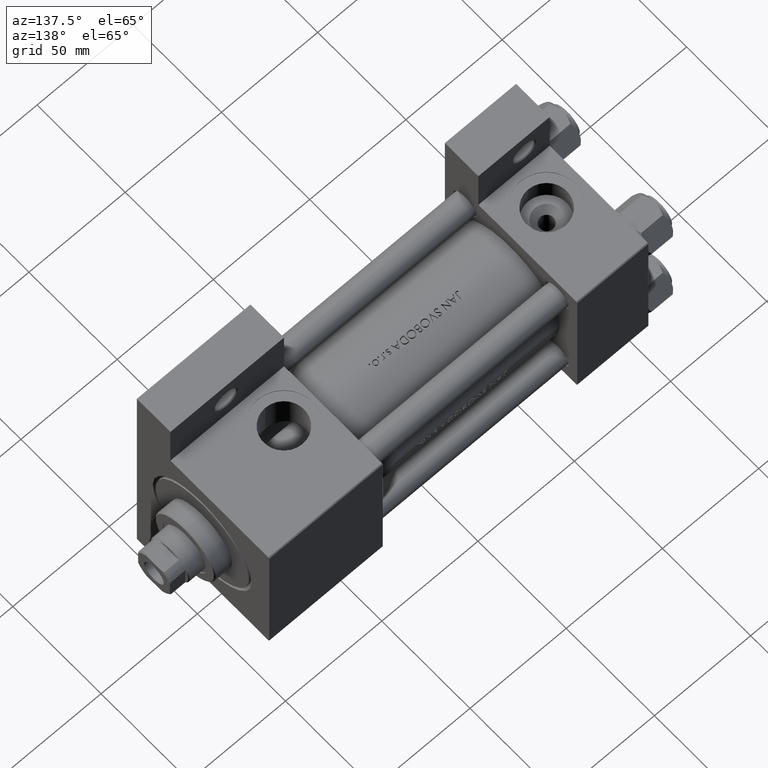
[diagram: clean part render]
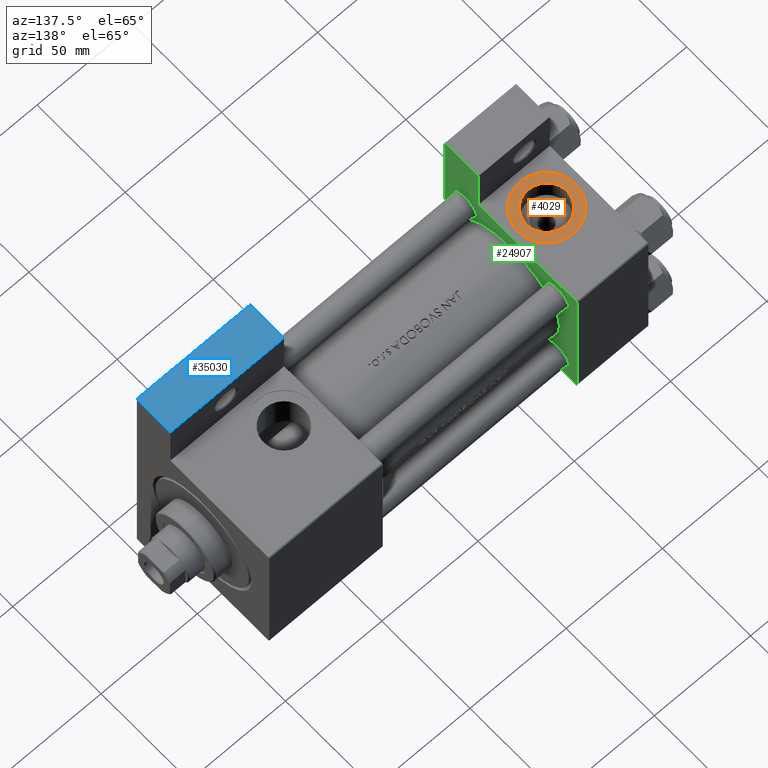
[diagram: same view with three faces highlighted in distinct colors, each labeled with its STEP entity id]
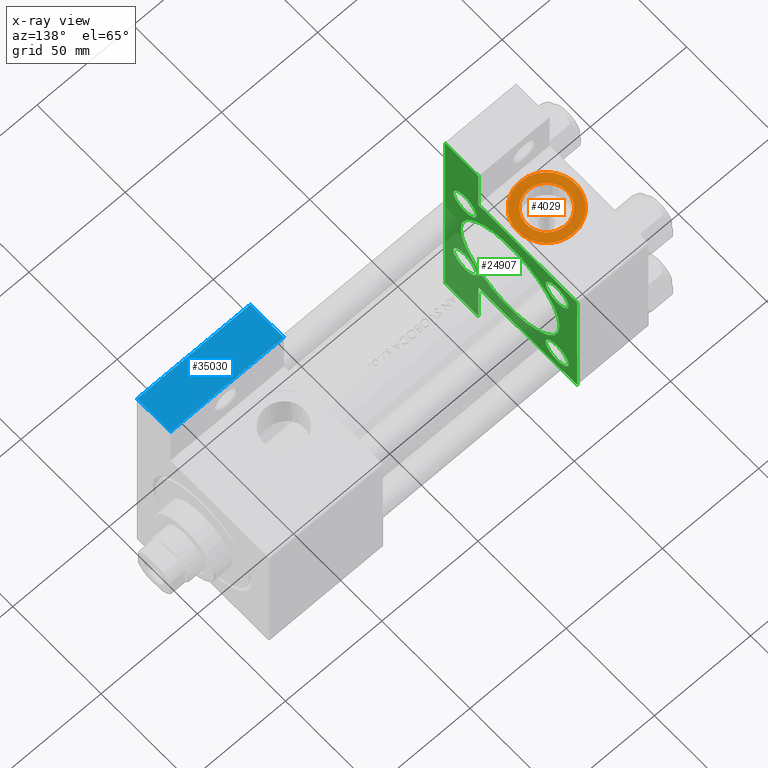
[diagram: x-ray of the same camera — body ghosted, the three highlighted faces saturated]
A machine part, auxiliary view with three faces highlighted in distinct colors.
The next image is the same camera in x-ray (body ghosted, the three faces saturated) — at least one of them is partly hidden behind the body in this view.
Their STEP definitions:

[orange] entity #4029 — the highlighted planar face has unit normal (0, -0, 1).
#244 = AXIS2_PLACEMENT_3D ( 'NONE', #19607, #8655, #34314 ) ;
#1715 = DIRECTION ( 'NONE',  ( 0.000000000000000000, 0.000000000000000000, -1.000000000000000000 ) ) ;
#3784 = EDGE_LOOP ( 'NONE', ( #42295, #26607 ) ) ;
#4029 = ADVANCED_FACE ( 'NONE', ( #15388, #19117 ), #31077, .T. ) ;
#4050 = AXIS2_PLACEMENT_3D ( 'NONE', #43397, #46907, #9288 ) ;
#4276 = VERTEX_POINT ( 'NONE', #38889 ) ;
#8655 = DIRECTION ( 'NONE',  ( 0.000000000000000000, -1.000000000000000000, -8.673617379884036705E-17 ) ) ;
#9172 = CARTESIAN_POINT ( 'NONE',  ( 18.50000000000000000, -37.30000000000000426, -3.452099717193846907E-15 ) ) ;
#9288 = DIRECTION ( 'NONE',  ( 0.000000000000000000, 0.000000000000000000, -1.000000000000000000 ) ) ;
#10128 = CARTESIAN_POINT ( 'NONE',  ( 18.50000000000000000, -37.30000000000000426, -3.452099717193846907E-15 ) ) ;
#13651 = CARTESIAN_POINT ( 'NONE',  ( 18.50000000000000355, -37.30000000000000426, 14.99999999999999822 ) ) ;
#13683 = DIRECTION ( 'NONE',  ( 0.000000000000000000, 0.000000000000000000, -1.000000000000000000 ) ) ;
#13861 = DIRECTION ( 'NONE',  ( 0.000000000000000000, 0.000000000000000000, -1.000000000000000000 ) ) ;
#13982 = ORIENTED_EDGE ( 'NONE', *, *, #27000, .T. ) ;
#15388 = FACE_BOUND ( 'NONE', #3784, .T. ) ;
#16477 = VERTEX_POINT ( 'NONE', #25539 ) ;
#16549 = CIRCLE ( 'NONE', #20516, 15.00000000000000178 ) ;
#18308 = AXIS2_PLACEMENT_3D ( 'NONE', #32376, #29119, #13683 ) ;
#18713 = VERTEX_POINT ( 'NONE', #35418 ) ;
#19117 = FACE_OUTER_BOUND ( 'NONE', #41386, .T. ) ;
#19607 = CARTESIAN_POINT ( 'NONE',  ( 18.50000000000000000, -37.30000000000000426, -3.452099717193846907E-15 ) ) ;
#20516 = AXIS2_PLACEMENT_3D ( 'NONE', #10128, #47994, #13861 ) ;
#24779 = CIRCLE ( 'NONE', #43880, 10.48000000000000043 ) ;
#25539 = CARTESIAN_POINT ( 'NONE',  ( 18.50000000000000000, -37.30000000000000426, 10.47999999999999687 ) ) ;
#26607 = ORIENTED_EDGE ( 'NONE', *, *, #37280, .F. ) ;
#27000 = EDGE_CURVE ( 'NONE', #31171, #18713, #16549, .T. ) ;
#27068 = CIRCLE ( 'NONE', #18308, 15.00000000000000178 ) ;
#29119 = DIRECTION ( 'NONE',  ( 0.000000000000000000, -1.000000000000000000, -8.673617379884036705E-17 ) ) ;
#29534 = ORIENTED_EDGE ( 'NONE', *, *, #35317, .T. ) ;
#31077 = PLANE ( 'NONE',  #244 ) ;
#31171 = VERTEX_POINT ( 'NONE', #13651 ) ;
#31601 = DIRECTION ( 'NONE',  ( 0.000000000000000000, -1.000000000000000000, -8.673617379884036705E-17 ) ) ;
#32376 = CARTESIAN_POINT ( 'NONE',  ( 18.50000000000000000, -37.30000000000000426, -3.452099717193846907E-15 ) ) ;
#34314 = DIRECTION ( 'NONE',  ( 0.000000000000000000, 8.673617379884036705E-17, -1.000000000000000000 ) ) ;
#35317 = EDGE_CURVE ( 'NONE', #18713, #31171, #27068, .T. ) ;
#35418 = CARTESIAN_POINT ( 'NONE',  ( 18.50000000000000000, -37.30000000000000426, -15.00000000000000533 ) ) ;
#36626 = CIRCLE ( 'NONE', #4050, 10.48000000000000043 ) ;
#37280 = EDGE_CURVE ( 'NONE', #16477, #4276, #36626, .T. ) ;
#38704 = EDGE_CURVE ( 'NONE', #4276, #16477, #24779, .T. ) ;
#38889 = CARTESIAN_POINT ( 'NONE',  ( 18.50000000000000000, -37.30000000000000426, -10.48000000000000398 ) ) ;
#41386 = EDGE_LOOP ( 'NONE', ( #29534, #13982 ) ) ;
#42295 = ORIENTED_EDGE ( 'NONE', *, *, #38704, .F. ) ;
#43397 = CARTESIAN_POINT ( 'NONE',  ( 18.50000000000000000, -37.30000000000000426, -3.452099717193846907E-15 ) ) ;
#43880 = AXIS2_PLACEMENT_3D ( 'NONE', #9172, #31601, #1715 ) ;
#46907 = DIRECTION ( 'NONE',  ( 0.000000000000000000, -1.000000000000000000, -8.673617379884036705E-17 ) ) ;
#47994 = DIRECTION ( 'NONE',  ( 0.000000000000000000, -1.000000000000000000, -8.673617379884036705E-17 ) ) ;

[blue] entity #35030 — the highlighted planar face has unit normal (-0, 0, 1).
#138 = VERTEX_POINT ( 'NONE', #5892 ) ;
#642 = EDGE_CURVE ( 'NONE', #1627, #33193, #46081, .T. ) ;
#1627 = VERTEX_POINT ( 'NONE', #32614 ) ;
#2080 = ORIENTED_EDGE ( 'NONE', *, *, #37901, .F. ) ;
#3178 = LINE ( 'NONE', #40284, #21541 ) ;
#4894 = VECTOR ( 'NONE', #19170, 1000.000000000000000 ) ;
#5104 = ORIENTED_EDGE ( 'NONE', *, *, #642, .T. ) ;
#5892 = CARTESIAN_POINT ( 'NONE',  ( 197.0000000000000000, -63.50000000000002842, -18.50000000000000000 ) ) ;
#7498 = FACE_OUTER_BOUND ( 'NONE', #16558, .T. ) ;
#9514 = ORIENTED_EDGE ( 'NONE', *, *, #43311, .F. ) ;
#11380 = VECTOR ( 'NONE', #28311, 1000.000000000000000 ) ;
#12729 = DIRECTION ( 'NONE',  ( -1.000000000000000000, 4.704334850106595794E-16, -0.000000000000000000 ) ) ;
#16558 = EDGE_LOOP ( 'NONE', ( #2080, #9514, #24474, #5104 ) ) ;
#18955 = CARTESIAN_POINT ( 'NONE',  ( 138.0000000000000000, -63.50000000000000000, -18.50000000000000000 ) ) ;
#19170 = DIRECTION ( 'NONE',  ( 0.000000000000000000, 0.000000000000000000, -1.000000000000000000 ) ) ;
#20096 = LINE ( 'NONE', #27584, #11380 ) ;
#20575 = VECTOR ( 'NONE', #12729, 1000.000000000000000 ) ;
#21541 = VECTOR ( 'NONE', #40033, 1000.000000000000000 ) ;
#22214 = AXIS2_PLACEMENT_3D ( 'NONE', #18955, #34154, #45110 ) ;
#24474 = ORIENTED_EDGE ( 'NONE', *, *, #29819, .T. ) ;
#27584 = CARTESIAN_POINT ( 'NONE',  ( 197.0000000000000000, -63.50000000000002842, -18.50000000000000000 ) ) ;
#28311 = DIRECTION ( 'NONE',  ( 0.000000000000000000, 0.000000000000000000, -1.000000000000000000 ) ) ;
#29819 = EDGE_CURVE ( 'NONE', #138, #1627, #31667, .T. ) ;
#30173 = PLANE ( 'NONE',  #22214 ) ;
#31667 = LINE ( 'NONE', #35158, #20575 ) ;
#32614 = CARTESIAN_POINT ( 'NONE',  ( 138.0000000000000000, -63.50000000000000000, -18.50000000000000000 ) ) ;
#33193 = VERTEX_POINT ( 'NONE', #35574 ) ;
#34154 = DIRECTION ( 'NONE',  ( -4.704334850106595794E-16, -1.000000000000000000, 0.000000000000000000 ) ) ;
#34905 = CARTESIAN_POINT ( 'NONE',  ( 197.0000000000000000, -63.50000000000002842, -37.50000000000000000 ) ) ;
#35030 = ADVANCED_FACE ( 'NONE', ( #7498 ), #30173, .T. ) ;
#35158 = CARTESIAN_POINT ( 'NONE',  ( 138.0000000000000000, -63.50000000000000000, -18.50000000000000000 ) ) ;
#35574 = CARTESIAN_POINT ( 'NONE',  ( 138.0000000000000000, -63.50000000000000000, -37.50000000000000000 ) ) ;
#37495 = VERTEX_POINT ( 'NONE', #34905 ) ;
#37901 = EDGE_CURVE ( 'NONE', #37495, #33193, #3178, .T. ) ;
#38104 = CARTESIAN_POINT ( 'NONE',  ( 138.0000000000000000, -63.50000000000000000, -18.50000000000000000 ) ) ;
#40033 = DIRECTION ( 'NONE',  ( -1.000000000000000000, 4.704334850106595794E-16, -0.000000000000000000 ) ) ;
#40284 = CARTESIAN_POINT ( 'NONE',  ( 138.0000000000000000, -63.50000000000000000, -37.50000000000000000 ) ) ;
#43311 = EDGE_CURVE ( 'NONE', #138, #37495, #20096, .T. ) ;
#45110 = DIRECTION ( 'NONE',  ( 1.000000000000000000, -4.704334850106595794E-16, 0.000000000000000000 ) ) ;
#46081 = LINE ( 'NONE', #38104, #4894 ) ;

[green] entity #24907 — the highlighted planar face has unit normal (-1, 0, -0).
#387 = EDGE_CURVE ( 'NONE', #23113, #1044, #17213, .T. ) ;
#877 = EDGE_CURVE ( 'NONE', #43967, #24464, #43548, .T. ) ;
#901 = CARTESIAN_POINT ( 'NONE',  ( 37.00000000000000000, -63.50000000000000000, -18.50000000000000355 ) ) ;
#1044 = VERTEX_POINT ( 'NONE', #44982 ) ;
#1138 = AXIS2_PLACEMENT_3D ( 'NONE', #2278, #28650, #2517 ) ;
#1664 = ORIENTED_EDGE ( 'NONE', *, *, #24977, .T. ) ;
#1761 = DIRECTION ( 'NONE',  ( -1.000000000000000000, 0.000000000000000000, -0.000000000000000000 ) ) ;
#2220 = DIRECTION ( 'NONE',  ( 0.000000000000000000, 0.000000000000000000, 1.000000000000000000 ) ) ;
#2278 = CARTESIAN_POINT ( 'NONE',  ( 37.00000000000000000, -26.14999999999999147, 26.15000000000000924 ) ) ;
#2517 = DIRECTION ( 'NONE',  ( 0.000000000000000000, 0.000000000000000000, 1.000000000000000000 ) ) ;
#3066 = CIRCLE ( 'NONE', #33281, 6.500000000000002665 ) ;
#3383 = EDGE_CURVE ( 'NONE', #46186, #29248, #48697, .T. ) ;
#3815 = DIRECTION ( 'NONE',  ( 0.000000000000000000, 0.000000000000000000, -1.000000000000000000 ) ) ;
#3921 = EDGE_CURVE ( 'NONE', #13497, #40086, #5499, .T. ) ;
#3967 = CARTESIAN_POINT ( 'NONE',  ( 37.00000000000000000, -26.14999999999999147, 19.64999999999997371 ) ) ;
#4191 = VECTOR ( 'NONE', #39550, 1000.000000000000000 ) ;
#4296 = CIRCLE ( 'NONE', #24952, 28.00000000000000000 ) ;
#4706 = DIRECTION ( 'NONE',  ( 0.000000000000000000, -1.000000000000000000, -9.251858538542971581E-17 ) ) ;
#4820 = ORIENTED_EDGE ( 'NONE', *, *, #7834, .F. ) ;
#5052 = DIRECTION ( 'NONE',  ( 0.000000000000000000, 0.000000000000000000, 1.000000000000000000 ) ) ;
#5180 = ORIENTED_EDGE ( 'NONE', *, *, #42022, .T. ) ;
#5425 = CARTESIAN_POINT ( 'NONE',  ( 37.00000000000000000, 37.49999999999999289, 37.50000000000000000 ) ) ;
#5499 = LINE ( 'NONE', #20668, #43166 ) ;
#5505 = ORIENTED_EDGE ( 'NONE', *, *, #32046, .T. ) ;
#5636 = VECTOR ( 'NONE', #23273, 1000.000000000000114 ) ;
#6437 = CARTESIAN_POINT ( 'NONE',  ( 37.00000000000001421, 63.50000000000000000, -18.50000000000000355 ) ) ;
#6456 = DIRECTION ( 'NONE',  ( 0.000000000000000000, 0.000000000000000000, 1.000000000000000000 ) ) ;
#6513 = VECTOR ( 'NONE', #24899, 1000.000000000000000 ) ;
#6641 = DIRECTION ( 'NONE',  ( 0.000000000000000000, 0.000000000000000000, 1.000000000000000000 ) ) ;
#7041 = EDGE_CURVE ( 'NONE', #39042, #45785, #47543, .T. ) ;
#7500 = LINE ( 'NONE', #29675, #27309 ) ;
#7834 = EDGE_CURVE ( 'NONE', #43967, #39042, #35356, .T. ) ;
#7868 = ORIENTED_EDGE ( 'NONE', *, *, #37113, .T. ) ;
#7970 = DIRECTION ( 'NONE',  ( 0.000000000000000000, 0.000000000000000000, 1.000000000000000000 ) ) ;
#8073 = CARTESIAN_POINT ( 'NONE',  ( 37.00000000000000000, -26.14999999999999147, -19.64999999999998082 ) ) ;
#8114 = EDGE_CURVE ( 'NONE', #1044, #40086, #15876, .T. ) ;
#8789 = ORIENTED_EDGE ( 'NONE', *, *, #40164, .F. ) ;
#9221 = DIRECTION ( 'NONE',  ( -0.000000000000000000, 0.000000000000000000, 1.000000000000000000 ) ) ;
#9453 = CARTESIAN_POINT ( 'NONE',  ( 37.00000000000000000, 26.14999999999999858, -19.65000000000000213 ) ) ;
#10015 = VERTEX_POINT ( 'NONE', #39371 ) ;
#10127 = CARTESIAN_POINT ( 'NONE',  ( 37.00000000000000000, -26.14999999999999147, 32.65000000000004832 ) ) ;
#10868 = EDGE_CURVE ( 'NONE', #22956, #24036, #29731, .T. ) ;
#10940 = CARTESIAN_POINT ( 'NONE',  ( 37.00000000000000000, 26.14999999999999858, -26.15000000000000213 ) ) ;
#11323 = AXIS2_PLACEMENT_3D ( 'NONE', #22260, #37458, #26251 ) ;
#11412 = AXIS2_PLACEMENT_3D ( 'NONE', #39155, #22803, #5052 ) ;
#11702 = CARTESIAN_POINT ( 'NONE',  ( 37.00000000000000000, 26.14999999999999858, 26.15000000000000213 ) ) ;
#12368 = VERTEX_POINT ( 'NONE', #13910 ) ;
#12950 = PLANE ( 'NONE',  #22919 ) ;
#13361 = CIRCLE ( 'NONE', #27658, 6.500000000000002665 ) ;
#13497 = VERTEX_POINT ( 'NONE', #901 ) ;
#13843 = VERTEX_POINT ( 'NONE', #9453 ) ;
#13910 = CARTESIAN_POINT ( 'NONE',  ( 37.00000000000000000, 26.14999999999999858, 19.64999999999999858 ) ) ;
#13936 = CARTESIAN_POINT ( 'NONE',  ( 37.00000000000000000, 0.000000000000000000, 0.000000000000000000 ) ) ;
#14022 = ORIENTED_EDGE ( 'NONE', *, *, #31217, .T. ) ;
#14443 = EDGE_LOOP ( 'NONE', ( #7868, #43939, #36808, #34269, #5505, #25208, #8789, #15182, #4820, #42871 ) ) ;
#14627 = ORIENTED_EDGE ( 'NONE', *, *, #47520, .T. ) ;
#15182 = ORIENTED_EDGE ( 'NONE', *, *, #7041, .F. ) ;
#15876 = LINE ( 'NONE', #35048, #38404 ) ;
#16059 = CARTESIAN_POINT ( 'NONE',  ( 37.00000000000000000, -37.50000000000000711, 36.99999999999999289 ) ) ;
#16190 = CIRCLE ( 'NONE', #11412, 28.00000000000000000 ) ;
#16669 = CARTESIAN_POINT ( 'NONE',  ( 37.00000000000000000, -63.50000000000000000, -37.49999999999999289 ) ) ;
#16689 = FACE_BOUND ( 'NONE', #32400, .T. ) ;
#17144 = ORIENTED_EDGE ( 'NONE', *, *, #43556, .F. ) ;
#17213 = LINE ( 'NONE', #16059, #5636 ) ;
#17260 = ORIENTED_EDGE ( 'NONE', *, *, #48216, .F. ) ;
#17472 = ORIENTED_EDGE ( 'NONE', *, *, #29574, .T. ) ;
#17530 = VECTOR ( 'NONE', #4706, 1000.000000000000000 ) ;
#17667 = FACE_BOUND ( 'NONE', #37616, .T. ) ;
#17858 = LINE ( 'NONE', #18593, #40567 ) ;
#18403 = DIRECTION ( 'NONE',  ( 0.000000000000000000, 0.000000000000000000, 1.000000000000000000 ) ) ;
#18593 = CARTESIAN_POINT ( 'NONE',  ( 37.00000000000000000, -63.49999999999998579, 26.72167621838007889 ) ) ;
#19902 = CARTESIAN_POINT ( 'NONE',  ( 37.00000000000000000, 37.49999999999999289, 37.50000000000000000 ) ) ;
#19977 = DIRECTION ( 'NONE',  ( 0.000000000000000000, 0.000000000000000000, 1.000000000000000000 ) ) ;
#20668 = CARTESIAN_POINT ( 'NONE',  ( 37.00000000000000000, -63.49999999999998579, -18.50000000000000355 ) ) ;
#20779 = VERTEX_POINT ( 'NONE', #46660 ) ;
#20876 = CARTESIAN_POINT ( 'NONE',  ( 37.00000000000000000, 36.99999999999999289, 37.50000000000000000 ) ) ;
#21177 = VERTEX_POINT ( 'NONE', #32870 ) ;
#22129 = DIRECTION ( 'NONE',  ( -1.000000000000000000, 0.000000000000000000, -0.000000000000000000 ) ) ;
#22260 = CARTESIAN_POINT ( 'NONE',  ( 37.00000000000000000, -26.14999999999999147, -26.15000000000000924 ) ) ;
#22539 = CARTESIAN_POINT ( 'NONE',  ( 37.00000000000000000, -26.14999999999999147, -32.65000000000004121 ) ) ;
#22803 = DIRECTION ( 'NONE',  ( 1.000000000000000000, -0.000000000000000000, 0.000000000000000000 ) ) ;
#22919 = AXIS2_PLACEMENT_3D ( 'NONE', #13936, #1761, #9221 ) ;
#22956 = VERTEX_POINT ( 'NONE', #10127 ) ;
#23113 = VERTEX_POINT ( 'NONE', #37258 ) ;
#23273 = DIRECTION ( 'NONE',  ( -0.000000000000000000, -0.7071067811865474617, -0.7071067811865474617 ) ) ;
#23438 = CARTESIAN_POINT ( 'NONE',  ( 37.00000000000000000, -37.50000000000000000, -18.50000000000000355 ) ) ;
#24036 = VERTEX_POINT ( 'NONE', #3967 ) ;
#24294 = EDGE_CURVE ( 'NONE', #12368, #42914, #13361, .T. ) ;
#24339 = LINE ( 'NONE', #5425, #17530 ) ;
#24464 = VERTEX_POINT ( 'NONE', #32445 ) ;
#24852 = CARTESIAN_POINT ( 'NONE',  ( 37.00000000000001421, 63.50000000000001421, -18.50000000000000355 ) ) ;
#24899 = DIRECTION ( 'NONE',  ( 0.000000000000000000, -1.734723475976806848E-16, -1.000000000000000000 ) ) ;
#24907 = ADVANCED_FACE ( 'NONE', ( #17667, #28390, #43579, #43827, #16689, #47086 ), #12950, .F. ) ;
#24915 = CIRCLE ( 'NONE', #25801, 6.500000000000002665 ) ;
#24952 = AXIS2_PLACEMENT_3D ( 'NONE', #25375, #40568, #6456 ) ;
#24977 = EDGE_CURVE ( 'NONE', #13843, #20779, #3066, .T. ) ;
#25208 = ORIENTED_EDGE ( 'NONE', *, *, #43798, .F. ) ;
#25375 = CARTESIAN_POINT ( 'NONE',  ( 37.00000000000000711, 0.000000000000000000, -0.5000000000000004441 ) ) ;
#25560 = CARTESIAN_POINT ( 'NONE',  ( 37.00000000000000000, 26.14999999999999858, 26.15000000000000213 ) ) ;
#25801 = AXIS2_PLACEMENT_3D ( 'NONE', #34945, #35186, #19977 ) ;
#26251 = DIRECTION ( 'NONE',  ( 0.000000000000000000, 0.000000000000000000, 1.000000000000000000 ) ) ;
#26900 = DIRECTION ( 'NONE',  ( -1.000000000000000000, 0.000000000000000000, -0.000000000000000000 ) ) ;
#26944 = DIRECTION ( 'NONE',  ( 0.000000000000000000, 0.000000000000000000, 1.000000000000000000 ) ) ;
#27309 = VECTOR ( 'NONE', #37140, 1000.000000000000000 ) ;
#27658 = AXIS2_PLACEMENT_3D ( 'NONE', #25560, #33298, #6641 ) ;
#28049 = CIRCLE ( 'NONE', #37610, 6.500000000000002665 ) ;
#28390 = FACE_BOUND ( 'NONE', #44104, .T. ) ;
#28626 = EDGE_LOOP ( 'NONE', ( #14022, #29486 ) ) ;
#28639 = CARTESIAN_POINT ( 'NONE',  ( 37.00000000000001421, 63.50000000000001421, 26.72167621838005047 ) ) ;
#28650 = DIRECTION ( 'NONE',  ( -1.000000000000000000, 0.000000000000000000, -0.000000000000000000 ) ) ;
#28882 = LINE ( 'NONE', #28639, #6513 ) ;
#29094 = CARTESIAN_POINT ( 'NONE',  ( 37.00000000000000000, -26.14999999999999147, 26.15000000000000924 ) ) ;
#29248 = VERTEX_POINT ( 'NONE', #8073 ) ;
#29486 = ORIENTED_EDGE ( 'NONE', *, *, #10868, .T. ) ;
#29574 = EDGE_CURVE ( 'NONE', #29248, #46186, #36495, .T. ) ;
#29675 = CARTESIAN_POINT ( 'NONE',  ( 37.00000000000000000, 37.49999999999999289, -37.50000000000000000 ) ) ;
#29731 = CIRCLE ( 'NONE', #1138, 6.500000000000037303 ) ;
#30204 = AXIS2_PLACEMENT_3D ( 'NONE', #29094, #48772, #2220 ) ;
#30932 = DIRECTION ( 'NONE',  ( -1.000000000000000000, 0.000000000000000000, -0.000000000000000000 ) ) ;
#31217 = EDGE_CURVE ( 'NONE', #24036, #22956, #38939, .T. ) ;
#31239 = VECTOR ( 'NONE', #3815, 1000.000000000000000 ) ;
#32046 = EDGE_CURVE ( 'NONE', #13497, #46858, #17858, .T. ) ;
#32144 = DIRECTION ( 'NONE',  ( -0.000000000000000000, 1.000000000000000000, 0.000000000000000000 ) ) ;
#32400 = EDGE_LOOP ( 'NONE', ( #17260, #17144 ) ) ;
#32445 = CARTESIAN_POINT ( 'NONE',  ( 37.00000000000000000, 36.99999999999999289, 37.50000000000000000 ) ) ;
#32870 = CARTESIAN_POINT ( 'NONE',  ( 37.00000000000000711, 0.000000000000000000, 27.50000000000000000 ) ) ;
#32956 = EDGE_LOOP ( 'NONE', ( #37453, #5180 ) ) ;
#33059 = DIRECTION ( 'NONE',  ( 0.000000000000000000, -1.734723475976806848E-16, -1.000000000000000000 ) ) ;
#33281 = AXIS2_PLACEMENT_3D ( 'NONE', #10940, #22129, #18403 ) ;
#33298 = DIRECTION ( 'NONE',  ( -1.000000000000000000, 0.000000000000000000, -0.000000000000000000 ) ) ;
#33653 = CARTESIAN_POINT ( 'NONE',  ( 37.00000000000000000, 26.14999999999999858, 32.65000000000001279 ) ) ;
#34269 = ORIENTED_EDGE ( 'NONE', *, *, #3921, .F. ) ;
#34945 = CARTESIAN_POINT ( 'NONE',  ( 37.00000000000000000, 26.14999999999999858, -26.15000000000000213 ) ) ;
#35048 = CARTESIAN_POINT ( 'NONE',  ( 37.00000000000000000, -37.50000000000000711, 37.49999999999999289 ) ) ;
#35186 = DIRECTION ( 'NONE',  ( -1.000000000000000000, 0.000000000000000000, -0.000000000000000000 ) ) ;
#35356 = LINE ( 'NONE', #19902, #31239 ) ;
#36085 = DIRECTION ( 'NONE',  ( 0.000000000000000000, -0.7071067811865474617, 0.7071067811865474617 ) ) ;
#36495 = CIRCLE ( 'NONE', #46069, 6.500000000000030198 ) ;
#36808 = ORIENTED_EDGE ( 'NONE', *, *, #8114, .T. ) ;
#37113 = EDGE_CURVE ( 'NONE', #24464, #23113, #24339, .T. ) ;
#37140 = DIRECTION ( 'NONE',  ( 0.000000000000000000, -1.000000000000000000, -9.251858538542972814E-17 ) ) ;
#37258 = CARTESIAN_POINT ( 'NONE',  ( 37.00000000000000000, -37.00000000000000711, 37.49999999999999289 ) ) ;
#37453 = ORIENTED_EDGE ( 'NONE', *, *, #24294, .T. ) ;
#37458 = DIRECTION ( 'NONE',  ( -1.000000000000000000, 0.000000000000000000, -0.000000000000000000 ) ) ;
#37610 = AXIS2_PLACEMENT_3D ( 'NONE', #11702, #26900, #7970 ) ;
#37616 = EDGE_LOOP ( 'NONE', ( #39212, #17472 ) ) ;
#37650 = CARTESIAN_POINT ( 'NONE',  ( 37.00000000000000000, -26.14999999999999147, -26.15000000000000924 ) ) ;
#38404 = VECTOR ( 'NONE', #41780, 1000.000000000000000 ) ;
#38939 = CIRCLE ( 'NONE', #30204, 6.500000000000037303 ) ;
#39042 = VERTEX_POINT ( 'NONE', #47963 ) ;
#39155 = CARTESIAN_POINT ( 'NONE',  ( 37.00000000000000711, 0.000000000000000000, -0.5000000000000004441 ) ) ;
#39212 = ORIENTED_EDGE ( 'NONE', *, *, #3383, .T. ) ;
#39371 = CARTESIAN_POINT ( 'NONE',  ( 37.00000000000001421, 63.50000000000000000, -37.50000000000002132 ) ) ;
#39550 = DIRECTION ( 'NONE',  ( 2.668805347656626678E-16, 1.000000000000000000, 0.000000000000000000 ) ) ;
#40086 = VERTEX_POINT ( 'NONE', #23438 ) ;
#40164 = EDGE_CURVE ( 'NONE', #45785, #10015, #28882, .T. ) ;
#40567 = VECTOR ( 'NONE', #33059, 1000.000000000000000 ) ;
#40568 = DIRECTION ( 'NONE',  ( 1.000000000000000000, -0.000000000000000000, 0.000000000000000000 ) ) ;
#41780 = DIRECTION ( 'NONE',  ( 0.000000000000000000, 9.251858538542971581E-17, -1.000000000000000000 ) ) ;
#42022 = EDGE_CURVE ( 'NONE', #42914, #12368, #28049, .T. ) ;
#42113 = CARTESIAN_POINT ( 'NONE',  ( 37.00000000000000000, 37.49999999999999289, 37.00000000000000000 ) ) ;
#42248 = VECTOR ( 'NONE', #36085, 1000.000000000000114 ) ;
#42871 = ORIENTED_EDGE ( 'NONE', *, *, #877, .T. ) ;
#42914 = VERTEX_POINT ( 'NONE', #33653 ) ;
#43166 = VECTOR ( 'NONE', #32144, 1000.000000000000000 ) ;
#43548 = LINE ( 'NONE', #20876, #42248 ) ;
#43556 = EDGE_CURVE ( 'NONE', #45531, #21177, #16190, .T. ) ;
#43579 = FACE_BOUND ( 'NONE', #28626, .T. ) ;
#43673 = CARTESIAN_POINT ( 'NONE',  ( 37.00000000000000711, 3.429011037612589276E-15, -28.50000000000000000 ) ) ;
#43798 = EDGE_CURVE ( 'NONE', #10015, #46858, #7500, .T. ) ;
#43827 = FACE_BOUND ( 'NONE', #32956, .T. ) ;
#43939 = ORIENTED_EDGE ( 'NONE', *, *, #387, .T. ) ;
#43967 = VERTEX_POINT ( 'NONE', #42113 ) ;
#44104 = EDGE_LOOP ( 'NONE', ( #14627, #1664 ) ) ;
#44982 = CARTESIAN_POINT ( 'NONE',  ( 37.00000000000000000, -37.50000000000000711, 36.99999999999999289 ) ) ;
#45531 = VERTEX_POINT ( 'NONE', #43673 ) ;
#45785 = VERTEX_POINT ( 'NONE', #6437 ) ;
#46069 = AXIS2_PLACEMENT_3D ( 'NONE', #37650, #30932, #26944 ) ;
#46186 = VERTEX_POINT ( 'NONE', #22539 ) ;
#46660 = CARTESIAN_POINT ( 'NONE',  ( 37.00000000000000000, 26.14999999999999858, -32.65000000000000568 ) ) ;
#46858 = VERTEX_POINT ( 'NONE', #16669 ) ;
#47086 = FACE_OUTER_BOUND ( 'NONE', #14443, .T. ) ;
#47520 = EDGE_CURVE ( 'NONE', #20779, #13843, #24915, .T. ) ;
#47543 = LINE ( 'NONE', #24852, #4191 ) ;
#47963 = CARTESIAN_POINT ( 'NONE',  ( 37.00000000000000711, 37.50000000000000711, -18.50000000000000355 ) ) ;
#48216 = EDGE_CURVE ( 'NONE', #21177, #45531, #4296, .T. ) ;
#48697 = CIRCLE ( 'NONE', #11323, 6.500000000000030198 ) ;
#48772 = DIRECTION ( 'NONE',  ( -1.000000000000000000, 0.000000000000000000, -0.000000000000000000 ) ) ;